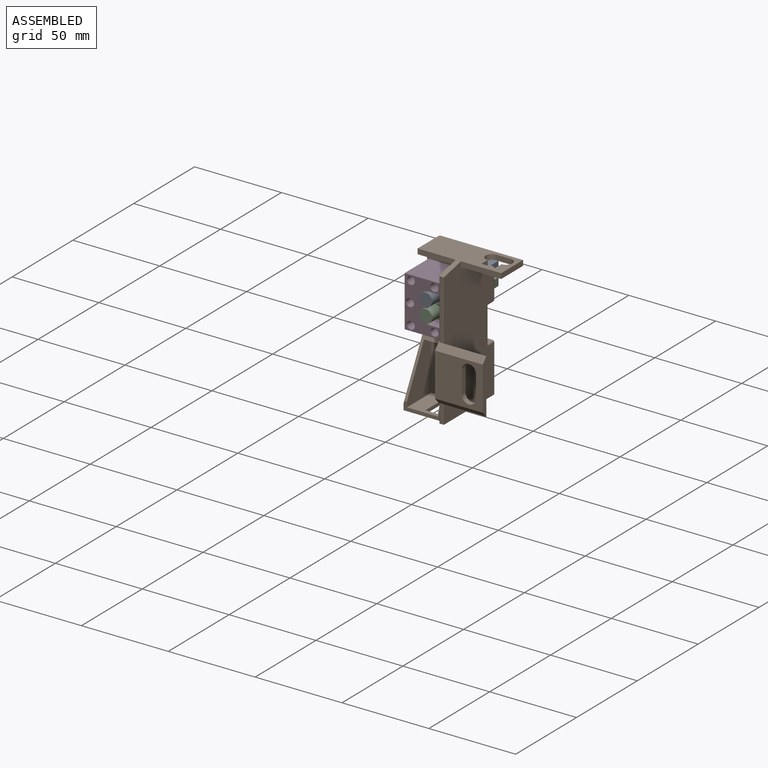
[diagram: assembled view]
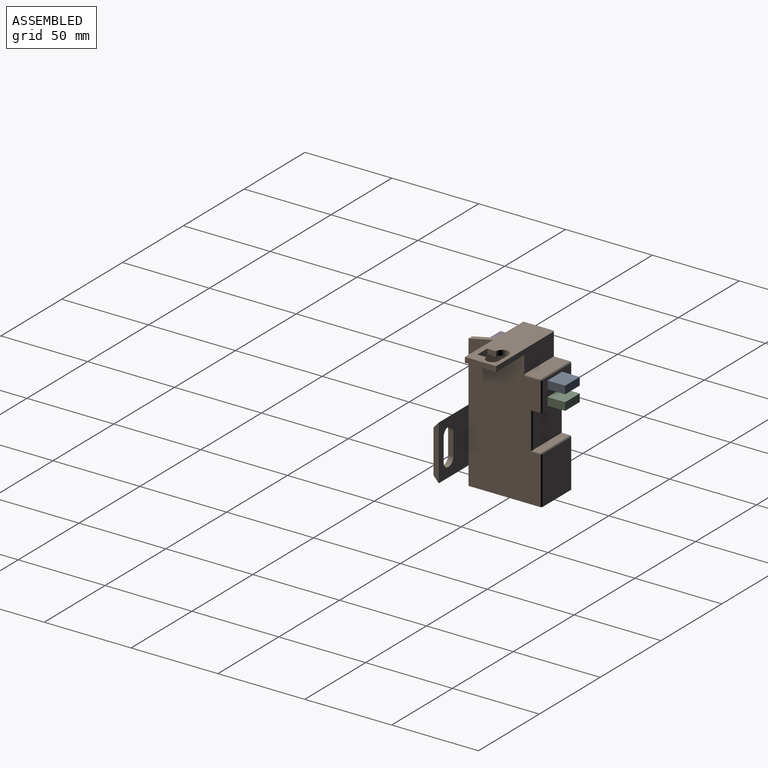
[diagram: assembled view, second angle]
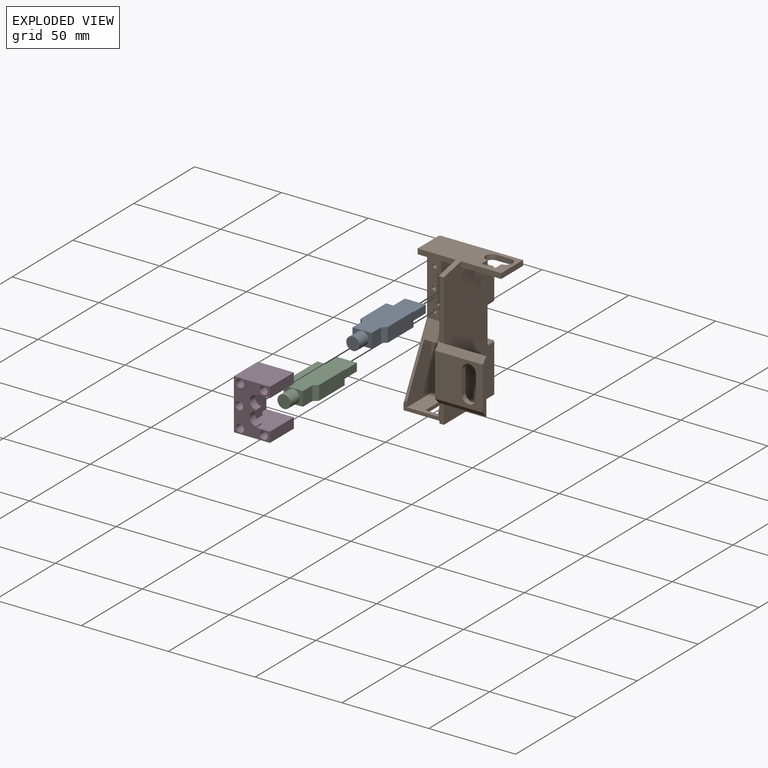
[diagram: exploded view]
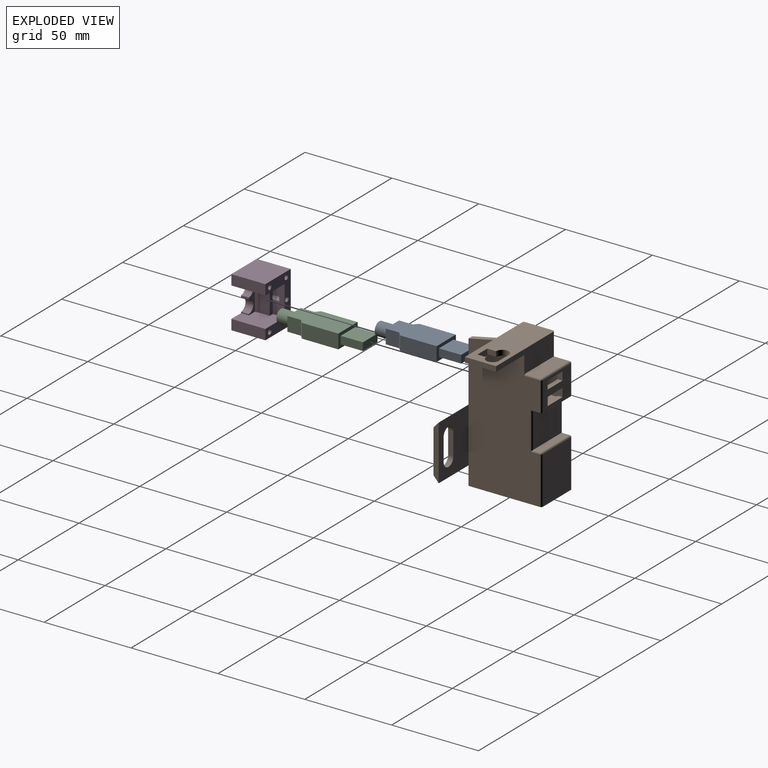
[diagram: exploded view, second angle]
ASSEMBLY  parts=4 mates=3
PART A: 17 faces, bbox 15.8x51.4x8.2 mm
  f0: plane 31x15.8mm, normal (0,0,1), area 447.1mm2, adj f2,f8,f9,f10,f11,f12,f13,f14
  f1: plane 31x15.8mm, normal (0,0,-1), area 447.1mm2, adj f2,f8,f9,f10,f11,f12,f13,f14
  f2: plane 11x8.2mm, normal (0,1,0), area 46mm2, adj f0,f1,f11,f13,f15
  f3: plane 12.8x12mm, normal (0,0,1), area 153.6mm2, adj f4,f6,f7,f10
  f4: plane 12.8x4.5mm, normal (-1,0,0), area 57.6mm2, adj f3,f5,f7,f10
  f5: plane 12.8x12mm, normal (0,0,-1), area 153.6mm2, adj f4,f6,f7,f10
  f6: plane 12.8x4.5mm, normal (1,0,0), area 57.6mm2, adj f3,f5,f7,f10
  f7: plane 12x4.5mm, normal (0,-1,0), area 54mm2, adj f3,f4,f5,f6
  f8: plane 21x8.2mm, normal (-1,0,0), area 172.2mm2, adj f0,f1,f10,f14
  f9: plane 21x8.2mm, normal (1,0,0), area 172.2mm2, adj f0,f1,f10,f12
  f10: plane 15.8x8.2mm, normal (0,-1,0), area 75.6mm2, adj f0,f1,f3,f4,f5,f6,f8,f9
  f11: plane 8.2x7.8mm, normal (1,0,0), area 64mm2, adj f0,f1,f2,f12
  f12: plane 8.2x2.4mm, normal (0.68,0.74,0), area 26.7mm2, adj f0,f1,f9,f11
  f13: plane 8.2x7.8mm, normal (-1,0,0), area 64mm2, adj f0,f1,f2,f14
  f14: plane 8.2x2.4mm, normal (-0.68,0.74,0), area 26.7mm2, adj f0,f1,f8,f13
  f15: cylinder r=3.75mm len=7.6mm, axis (0,-1,0), area 179.1mm2, adj f2,f16
  f16: plane 7.5x7.5mm, normal (0,1,0), area 44.2mm2, adj f15
PART B: 94 faces, bbox 49.5x45.1x79.7 mm
  f0: plane 23.15x3mm, normal (0,-1,0), area 69.5mm2, adj f7,f40,f47,f50
  f1: plane 27.2x23mm, normal (0,1,0), area 625.6mm2, adj f30,f66,f68,f69
  f2: plane 79.7x38.6mm, normal (-1,0,0), area 1695.4mm2, adj f6,f30,f46,f50,f51,f68,f73,f77
  f3: plane 23x16.5mm, normal (0,1,0), area 261.4mm2, adj f16,f17,f18,f19,f20,f21,f22,f23
  f4: plane 10.7x2mm, normal (0,-1,0), area 21.4mm2, adj f7,f30,f39,f88
  f5: plane 34.4x2mm, normal (0,-1,0), area 68.8mm2, adj f7,f38,f89,f93
  f6: plane 22x5mm, normal (0,-1,0), area 55.5mm2, adj f2,f8,f12,f13,f27,f28,f30,f91
  f7: plane 79.7x41.1mm, normal (1,0,0), area 2953.5mm2, adj f0,f4,f5,f30,f31,f40,f48,f66
  f8: plane 32x20mm, normal (-1,0,0), area 446mm2, adj f6,f9,f11,f12,f28,f29,f30
  f9: plane 32x18mm, normal (0,-1,0), area 558mm2, adj f8,f10,f27,f28,f29,f30
  f10: plane 17.65x2mm, normal (1,0,0), area 35.3mm2, adj f9,f11,f28,f30
  f11: plane 9x2mm, normal (0,1,0), area 18mm2, adj f8,f10,f28,f30
  f12: plane 36.2x21mm, normal (0,-0.89,0.46), area 309mm2, adj f6,f8,f13,f14,f27,f29,f91
  f13: plane 79.7x42.3mm, normal (-1,0,0), area 1563.9mm2, adj f6,f12,f14,f15,f24,f26,f30,f37
  f14: plane 35.5x21mm, normal (0,-1,0), area 455.9mm2, adj f12,f13,f24,f25,f26,f51,f53,f55
  f15: plane 16.8x16mm, normal (0,-1,0), area 150.7mm2, adj f13,f16,f17,f18,f19,f20,f21,f22
  f16: plane 4.8x2.8mm, normal (-1,0,0), area 13.4mm2, adj f3,f15,f17,f22
  f17: plane 12.3x2.8mm, normal (0,0,1), area 34.4mm2, adj f3,f15,f16,f18
  f18: plane 4.8x2.8mm, normal (1,0,0), area 13.4mm2, adj f3,f15,f17,f22
  f19: plane 4.8x2.8mm, normal (-1,0,0), area 13.4mm2, adj f3,f15,f20,f23
  f20: plane 12.3x2.8mm, normal (0,0,1), area 34.4mm2, adj f3,f15,f19,f21
  f21: plane 4.8x2.8mm, normal (1,0,0), area 13.4mm2, adj f3,f15,f20,f23
  f22: plane 12.3x2.8mm, normal (0,0,-1), area 34.4mm2, adj f3,f15,f16,f18
  f23: plane 12.3x2.8mm, normal (0,0,-1), area 34.4mm2, adj f3,f15,f19,f21
  f24: plane 18x16mm, normal (0,0,1), area 288mm2, adj f13,f14,f15,f25
  f25: plane 18x16.8mm, normal (1,0,0), area 302.4mm2, adj f14,f15,f24,f26
  f26: plane 18x16mm, normal (0,0,-1), area 288mm2, adj f13,f14,f15,f25
  f27: plane 30x20mm, normal (1,0,0), area 410.7mm2, adj f6,f9,f12,f28,f29
  f28: plane 20x18mm, normal (0,0,1), area 201.2mm2, adj f6,f8,f9,f10,f11,f27
  f29: plane 18x5.98mm, normal (0,0,-1), area 107.6mm2, adj f8,f9,f12,f27
  f30: plane 42.1x25mm, normal (0,0,-1), area 838mm2, adj f1,f2,f4,f6,f7,f8,f9,f10
  f31: plane 31.6x24.5mm, normal (0,1,0), area 619.9mm2, adj f7,f32,f33,f34,f35,f36,f38,f39
  f32: cylinder r=4mm len=8mm, axis (0,1,0), area 37.7mm2, adj f31,f33,f36,f37
  f33: plane 13x3mm, normal (-1,0,0), area 39mm2, adj f31,f32,f34,f37
  f34: cylinder r=4mm len=8mm, axis (0,1,0), area 37.7mm2, adj f31,f33,f36,f37
  f35: plane 31.6x3mm, normal (1,0,0), area 84.9mm2, adj f31,f37,f38,f39
  f36: plane 13x3mm, normal (1,0,0), area 39mm2, adj f31,f32,f34,f37
  f37: plane 27.5x25mm, normal (0,-1,0), area 533.2mm2, adj f13,f32,f33,f34,f35,f36,f38,f39
  f38: plane 27.5x4.4mm, normal (0,-0.74,0.67), area 123mm2, adj f5,f13,f31,f35,f37,f89
  f39: plane 27.5x4.4mm, normal (0,-0.74,-0.67), area 123mm2, adj f4,f13,f31,f35,f37,f88
  f40: plane 23.15x18mm, normal (0,0,-1), area 276mm2, adj f0,f7,f41,f42,f43,f44,f45,f47
  f41: cylinder r=3.65mm len=7.3mm, axis (0,0,-1), area 34.4mm2, adj f40,f42,f49,f50
  f42: plane 8x3mm, normal (0,-1,0), area 24mm2, adj f40,f41,f43,f50
  f43: cylinder r=3.65mm len=7.3mm, axis (0,0,-1), area 34.4mm2, adj f40,f42,f44,f50
  f44: plane 5.05x3mm, normal (-1,0,0), area 15.2mm2, adj f40,f43,f45,f50
  f45: plane 8x3mm, normal (0,1,0), area 24mm2, adj f40,f44,f49,f50
  f46: plane 22x3mm, normal (0,-1,0), area 66mm2, adj f2,f13,f50,f51
  f47: plane 18x3mm, normal (1,0,0), area 54mm2, adj f0,f40,f48,f50
  f48: plane 47.15x14mm, normal (0,1,0), area 381.7mm2, adj f7,f40,f47,f50,f52,f76,f80
  f49: plane 5.05x3mm, normal (1,0,0), area 15.2mm2, adj f40,f41,f45,f50
  f50: plane 48.15x18mm, normal (0,0,1), area 725.8mm2, adj f0,f2,f41,f42,f43,f44,f45,f46
  f51: plane 22x8.2mm, normal (0,0,-1), area 158.6mm2, adj f2,f13,f14,f46,f90
  f52: plane 23x9mm, normal (0,0,1), area 207mm2, adj f48,f76,f83,f84
  f53: cylinder r=1.15mm len=5mm, axis (0,-1,0), area 36.1mm2, adj f14,f54
  f54: plane 2.3x2.3mm, normal (0,-1,0), area 4.2mm2, adj f53
  f55: cylinder r=1.15mm len=5mm, axis (0,-1,0), area 36.1mm2, adj f14,f56
  f56: plane 2.3x2.3mm, normal (0,-1,0), area 4.2mm2, adj f55
  f57: cylinder r=1.15mm len=5mm, axis (0,-1,0), area 36.1mm2, adj f14,f58
  f58: plane 2.3x2.3mm, normal (0,-1,0), area 4.2mm2, adj f57
  f59: cylinder r=1.15mm len=5mm, axis (0,-1,0), area 36.1mm2, adj f14,f60
  f60: plane 2.3x2.3mm, normal (0,-1,0), area 4.2mm2, adj f59
  f61: cylinder r=1.15mm len=5mm, axis (0,-1,0), area 36.1mm2, adj f14,f62
  f62: plane 2.3x2.3mm, normal (0,-1,0), area 4.2mm2, adj f61
  f63: plane 23x4.5mm, normal (0,0,-1), area 103.5mm2, adj f65,f74,f81,f82
  f64: plane 23x4.5mm, normal (0,0,1), area 103.5mm2, adj f65,f69,f70,f73
  f65: plane 23x20mm, normal (0,1,0), area 460mm2, adj f63,f64,f72,f77
  f66: cylinder r=1mm len=27.2mm, axis (0,0,1), area 42.7mm2, adj f1,f7,f30,f67
  f67: sphere r=1mm, area 1.6mm2, adj f66,f69,f70
  f68: cylinder r=1mm len=27.2mm, axis (0,0,-1), area 42.7mm2, adj f1,f2,f30,f71
  f69: cylinder r=1mm len=23mm, axis (-1,0,0), area 36.1mm2, adj f1,f64,f67,f71
  f70: cylinder r=1mm len=5.5mm, axis (0,1,0), area 7.6mm2, adj f7,f64,f67,f72
  f71: sphere r=1mm, area 1.6mm2, adj f68,f69,f73
  f72: cylinder r=1mm len=22mm, axis (0,0,-1), area 32.6mm2, adj f7,f65,f70,f74
  f73: cylinder r=1mm len=5.5mm, axis (0,-1,0), area 7.6mm2, adj f2,f64,f71,f77
  f74: cylinder r=1mm len=5.5mm, axis (0,-1,0), area 7.6mm2, adj f7,f63,f72,f78
  f75: cylinder r=1mm len=16.5mm, axis (0,0,1), area 25.9mm2, adj f3,f7,f78,f79
  f76: cylinder r=1mm len=9mm, axis (0,-1,0), area 14.1mm2, adj f7,f48,f52,f79
  f77: cylinder r=1mm len=22mm, axis (0,0,1), area 32.6mm2, adj f2,f65,f73,f81
  f78: sphere r=1mm, area 1.6mm2, adj f74,f75,f82
  f79: sphere r=1mm, area 1.6mm2, adj f75,f76,f83
  f80: cylinder r=1mm len=14mm, axis (0,0,-1), area 21mm2, adj f2,f48,f50,f84
  f81: cylinder r=1mm len=5.5mm, axis (0,1,0), area 7.6mm2, adj f2,f63,f77,f85
  f82: cylinder r=1mm len=23mm, axis (1,0,0), area 36.1mm2, adj f3,f63,f78,f85
  f83: cylinder r=1mm len=23mm, axis (1,0,0), area 36.1mm2, adj f3,f52,f79,f86
  f84: cylinder r=1mm len=10mm, axis (0,1,0), area 14.7mm2, adj f2,f52,f80,f86
  f85: sphere r=1mm, area 1.6mm2, adj f81,f82,f87
  f86: sphere r=1mm, area 1.6mm2, adj f83,f84,f87
  f87: cylinder r=1mm len=16.5mm, axis (0,0,-1), area 25.9mm2, adj f2,f3,f85,f86
  f88: cylinder r=1mm len=10.7mm, axis (0,0,-1), area 16.2mm2, adj f4,f13,f30,f39
  f89: cylinder r=1mm len=34.4mm, axis (0,0,-1), area 53.4mm2, adj f5,f13,f38,f92
  f90: cylinder r=1mm len=35.74mm, axis (0,0,1), area 55.9mm2, adj f2,f14,f51,f91
  f91: cylinder r=1mm len=38.59mm, axis (0,0.46,0.89), area 65.3mm2, adj f2,f6,f12,f90
  f92: plane 1x1mm, normal (0,0,-1), area 0.2mm2, adj f13,f89,f93
  f93: plane 14.1x3mm, normal (0,-0.21,0.98), area 43.2mm2, adj f5,f7,f13,f50,f92
PART C: same geometry as A
PART D: 34 faces, bbox 20.8x19.6x29.2 mm
  f0: cylinder r=1.4mm len=3.1mm, axis (0,1,0), area 27.3mm2, adj f26,f33
  f1: cylinder r=1.4mm len=3.1mm, axis (0,1,0), area 27.3mm2, adj f26,f32
  f2: cylinder r=1.4mm len=3.1mm, axis (0,1,0), area 27.3mm2, adj f26,f31
  f3: cylinder r=1.4mm len=3.1mm, axis (0,1,0), area 27.3mm2, adj f26,f30
  f4: cylinder r=1.4mm len=3.1mm, axis (0,1,0), area 27.3mm2, adj f26,f29
  f5: extruded ~17.4x2.65mm, area 46.7mm2, adj f6,f9,f11,f27
  f6: plane 19.6x15.8mm, normal (0,0,1), area 252.7mm2, adj f5,f7,f10,f11,f12,f18,f26,f27
  f7: plane 17.4x6.8mm, normal (-1,0,0), area 109.4mm2, adj f6,f9,f21,f26,f28,f32
  f8: plane 19.6x5.9mm, normal (-1,0,0), area 115.6mm2, adj f9,f18,f20,f26
  f9: plane 19.6x15.8mm, normal (0,0,-1), area 252.7mm2, adj f5,f7,f8,f11,f16,f18,f26,f27
  f10: plane 19.6x5.9mm, normal (-1,0,0), area 115.6mm2, adj f6,f18,f19,f26
  f11: plane 17.4x5mm, normal (0,-1,0), area 42.8mm2, adj f5,f6,f9,f12,f13,f14,f15,f16
  f12: plane 4.5x0.65mm, normal (-1,0,0), area 2.9mm2, adj f6,f11,f13,f18
  f13: cylinder r=3.75mm len=7.5mm, axis (0,-1,0), area 53mm2, adj f11,f12,f14,f18
  f14: plane 4.5x1.1mm, normal (-1,0,0), area 5mm2, adj f11,f13,f15,f18
  f15: cylinder r=3.75mm len=7.5mm, axis (0,-1,0), area 53mm2, adj f11,f14,f16,f18
  f16: plane 4.5x0.65mm, normal (-1,0,0), area 2.9mm2, adj f9,f11,f15,f18
  f17: plane 29.2x19.6mm, normal (1,0,0), area 572.3mm2, adj f18,f19,f20,f26
  f18: plane 29.2x20.8mm, normal (0,1,0), area 346.2mm2, adj f6,f8,f9,f10,f12,f13,f14,f15
  f19: plane 20.8x19.6mm, normal (0,0,-1), area 407.7mm2, adj f10,f17,f18,f26
  f20: plane 20.8x19.6mm, normal (0,0,1), area 407.7mm2, adj f8,f17,f18,f26
  f21: cylinder r=2.25mm len=16.5mm, axis (0,1,0), area 223.9mm2, adj f7,f18,f28,f32
  f22: cylinder r=2.25mm len=16.5mm, axis (0,1,0), area 233.3mm2, adj f18,f31
  f23: cylinder r=2.25mm len=16.5mm, axis (0,1,0), area 233.3mm2, adj f18,f30
  f24: cylinder r=2.25mm len=16.5mm, axis (0,1,0), area 233.3mm2, adj f18,f33
  f25: cylinder r=2.25mm len=16.5mm, axis (0,1,0), area 233.3mm2, adj f18,f29
  f26: plane 29.2x20.8mm, normal (0,-1,0), area 301.7mm2, adj f0,f1,f2,f3,f4,f6,f7,f8
  f27: plane 17.4x5.65mm, normal (-1,0,0), area 98.3mm2, adj f5,f6,f9,f28
  f28: plane 17.4x2.5mm, normal (0,-1,0), area 42.9mm2, adj f6,f7,f9,f21,f27
  f29: plane 4.5x4.5mm, normal (0,1,0), area 9.7mm2, adj f4,f25
  f30: plane 4.5x4.5mm, normal (0,1,0), area 9.7mm2, adj f3,f23
  f31: plane 4.5x4.5mm, normal (0,1,0), area 9.7mm2, adj f2,f22
  f32: plane 4.5x4.15mm, normal (0,1,0), area 9.2mm2, adj f1,f7,f21
  f33: plane 4.5x4.5mm, normal (0,1,0), area 9.7mm2, adj f0,f24
PLACE A rot(axis=(1,0,0),180deg) t=(2.5,18,20.7)mm
PLACE B t=(1,20.8,-8.35)mm fixed
PLACE C rot(axis=(1,0,0),180deg) t=(2.5,18,12.1)mm
PLACE D rot(axis=(0,0,1),180deg) t=(2.6,-2.6,29.15)mm
MATE fastened B.f55 <-> D.f22  axis (0,-1,0) through (-6.7,0,27.8)mm
MATE fastened B.f15 <-> A.f15  axis (0,-1,0) through (2.5,18,20.7)mm
MATE fastened B.f15 <-> C.f15  axis (0,-1,0) through (2.5,18,12.1)mm
